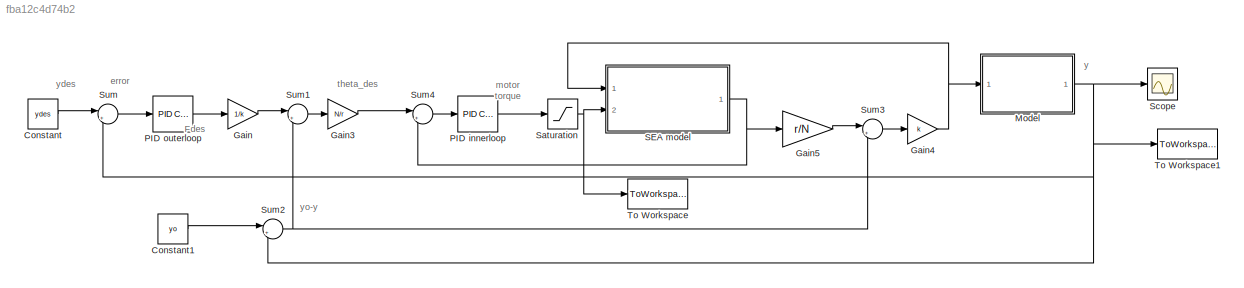
MODEL slx_fba12c4d74b2
KIND model
CONFIG AbsTol = auto
CONFIG EnableMultiTasking = off
CONFIG FixedStep = auto
CONFIG MaxStep = auto
CONFIG MinStep = auto
CONFIG RelTol = 1e-3
CONFIG SampleTimeConstraint = Unconstrained
CONFIG Solver = VariableStepAuto
CONFIG SolverName = VariableStepAuto
CONFIG StartTime = 0.0
CONFIG StopTime = 20
BLOCK [Constant] Constant
  Value = ydes
BLOCK [Constant] Constant1
  Value = yo
BLOCK [Gain] Gain
  Gain = 1/k
  OutDataTypeStr = Inherit: Inherit via internal rule
  ParamDataTypeStr = Inherit: Inherit via internal rule
  SaturateOnIntegerOverflow = off
BLOCK [Gain] Gain3
  Gain = N/r
  OutDataTypeStr = Inherit: Inherit via internal rule
  ParamDataTypeStr = Inherit: Inherit via internal rule
  SaturateOnIntegerOverflow = off
BLOCK [Gain] Gain4
  Gain = k
  OutDataTypeStr = Inherit: Inherit via internal rule
  ParamDataTypeStr = Inherit: Inherit via internal rule
  SaturateOnIntegerOverflow = off
BLOCK [Gain] Gain5
  Gain = r/N
  OutDataTypeStr = Inherit: Inherit via internal rule
  ParamDataTypeStr = Inherit: Inherit via internal rule
  SaturateOnIntegerOverflow = off
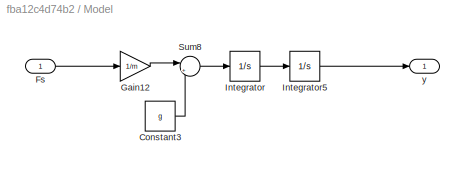
BLOCK [SubSystem] Model
  Ports = [1, 1]
  RequestExecContextInheritance = off
BLOCK [Constant] Model/Constant3
  Value = g
BLOCK [Inport] Model/Fs
  IconDisplay = Port number
BLOCK [Gain] Model/Gain12
  Gain = 1/m
  OutDataTypeStr = Inherit: Inherit via internal rule
  ParamDataTypeStr = Inherit: Inherit via internal rule
  SaturateOnIntegerOverflow = off
BLOCK [Integrator] Model/Integrator
  Ports = [1, 1]
BLOCK [Integrator] Model/Integrator5
  InitialCondition = 1
  Ports = [1, 1]
BLOCK [Sum] Model/Sum8
  IconShape = round
  InputSameDT = off
  Inputs = |+-
  OutDataTypeStr = Inherit: Inherit via internal rule
  Ports = [2, 1]
  SaturateOnIntegerOverflow = off
BLOCK [Outport] Model/y
  IconDisplay = Port number
BLOCK [Reference] PID innerloop  REF=simulink/Continuous/PID Controller
  Ports = [1, 1]
  SourceBlock = simulink/Continuous/PID Controller
  SourceProductBaseCode = SL
  SourceProductName = Simulink
  SourceType = PID 1dof
BLOCK [Reference] PID outerloop  REF=simulink/Continuous/PID Controller
  Ports = [1, 1]
  SourceBlock = simulink/Continuous/PID Controller
  SourceProductBaseCode = SL
  SourceProductName = Simulink
  SourceType = PID 1dof
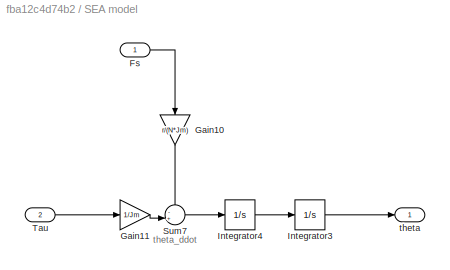
BLOCK [SubSystem] SEA model
  Ports = [2, 1]
  RequestExecContextInheritance = off
BLOCK [Inport] SEA model/Fs
  IconDisplay = Port number
BLOCK [Gain] SEA model/Gain10
  Gain = r/(N*Jm)
  OutDataTypeStr = Inherit: Inherit via internal rule
  ParamDataTypeStr = Inherit: Inherit via internal rule
  SaturateOnIntegerOverflow = off
BLOCK [Gain] SEA model/Gain11
  Gain = 1/Jm
  OutDataTypeStr = Inherit: Inherit via internal rule
  ParamDataTypeStr = Inherit: Inherit via internal rule
  SaturateOnIntegerOverflow = off
BLOCK [Integrator] SEA model/Integrator3
  Ports = [1, 1]
BLOCK [Integrator] SEA model/Integrator4
  Ports = [1, 1]
BLOCK [Sum] SEA model/Sum7
  IconShape = round
  InputSameDT = off
  Inputs = -+|
  OutDataTypeStr = Inherit: Inherit via internal rule
  Ports = [2, 1]
  SaturateOnIntegerOverflow = off
BLOCK [Inport] SEA model/Tau
  IconDisplay = Port number
  Port = 2
BLOCK [Outport] SEA model/theta 
  IconDisplay = Port number
BLOCK [Saturate] Saturation
  InputPortMap = u0
  LowerLimit = -Tau_max
  Ports = [1, 1]
  UpperLimit = Tau_max
BLOCK [Scope] Scope
  Floating = off
  NumInputPorts = 1
  Ports = [1]
  ScopeSpecificationString = Simulink.scopes.TimeScopeBlockCfg('CurrentConfiguration', extmgr.ConfigurationSet(extmgr.Configuration('Core','General UI',true),extmgr.Configuration('Core','Source UI',true),extmgr.Configuration('Sources','WiredSimulink',true),extmgr.Configuration('Visuals','Time Domain',true,'SerializedDisplays',{struct('MinYLimReal','0.79625','MaxYLimReal','1.02264','YLabelReal','','MinYLimMag','0.79625','MaxYL...<+1352ch>
BLOCK [Sum] Sum
  IconShape = round
  InputSameDT = off
  Inputs = |+-
  OutDataTypeStr = Inherit: Inherit via internal rule
  Ports = [2, 1]
  SaturateOnIntegerOverflow = off
BLOCK [Sum] Sum1
  IconShape = round
  InputSameDT = off
  Inputs = |+-
  OutDataTypeStr = Inherit: Inherit via internal rule
  Ports = [2, 1]
  SaturateOnIntegerOverflow = off
BLOCK [Sum] Sum2
  IconShape = round
  InputSameDT = off
  Inputs = |+-
  OutDataTypeStr = Inherit: Inherit via internal rule
  Ports = [2, 1]
  SaturateOnIntegerOverflow = off
BLOCK [Sum] Sum3
  IconShape = round
  InputSameDT = off
  Inputs = |++
  OutDataTypeStr = Inherit: Inherit via internal rule
  Ports = [2, 1]
  SaturateOnIntegerOverflow = off
BLOCK [Sum] Sum4
  IconShape = round
  InputSameDT = off
  Inputs = |+-
  OutDataTypeStr = Inherit: Inherit via internal rule
  Ports = [2, 1]
  SaturateOnIntegerOverflow = off
BLOCK [ToWorkspace] To Workspace
  FixptAsFi = on
  MaxDataPoints = inf
  Ports = [1]
  SampleTime = -1
  VariableName = tau
BLOCK [ToWorkspace] To Workspace1
  FixptAsFi = on
  MaxDataPoints = inf
  Ports = [1]
  SampleTime = -1
  VariableName = y
ANNOTATION (root): Fdes
ANNOTATION (root): error
ANNOTATION (root): motor torque
ANNOTATION (root): theta_des
ANNOTATION (root): y
ANNOTATION (root): ydes
ANNOTATION (root): yo-y
ANNOTATION SEA model: theta_ddot
LINE Constant1:1 -> Sum2:1
LINE Constant:1 -> Sum:1
LINE Gain3:1 -> Sum4:1
NET Gain4:1 -> Model:1, SEA model:1
LINE Gain5:1 -> Sum3:1
LINE Gain:1 -> Sum1:1
LINE Model/Constant3:1 -> Model/Sum8:2
LINE Model/Fs:1 -> Model/Gain12:1
LINE Model/Gain12:1 -> Model/Sum8:1
LINE Model/Integrator5:1 -> Model/y:1
LINE Model/Integrator:1 -> Model/Integrator5:1
LINE Model/Sum8:1 -> Model/Integrator:1
NET Model:1 -> Scope:1, Sum2:2, Sum:2, To Workspace1:1
LINE PID innerloop:1 -> Saturation:1
LINE PID outerloop:1 -> Gain:1
LINE SEA model/Fs:1 -> SEA model/Gain10:1
LINE SEA model/Gain10:1 -> SEA model/Sum7:1
LINE SEA model/Gain11:1 -> SEA model/Sum7:2
LINE SEA model/Integrator3:1 -> SEA model/theta :1
LINE SEA model/Integrator4:1 -> SEA model/Integrator3:1
LINE SEA model/Sum7:1 -> SEA model/Integrator4:1
LINE SEA model/Tau:1 -> SEA model/Gain11:1
NET SEA model:1 -> Gain5:1, Sum4:2
NET Saturation:1 -> SEA model:2, To Workspace:1
LINE Sum1:1 -> Gain3:1
NET Sum2:1 -> Sum1:2, Sum3:2
LINE Sum3:1 -> Gain4:1
LINE Sum4:1 -> PID innerloop:1
LINE Sum:1 -> PID outerloop:1
note: NET lines group one-source signal fan-out (src -> all destinations, sorted); 1:1 wires keep LINE
